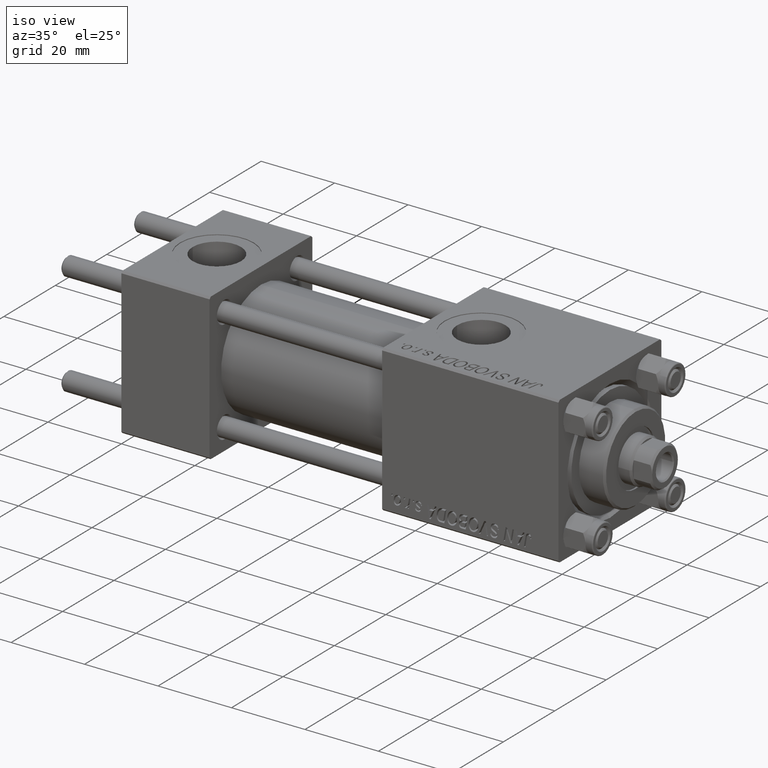
[diagram: clean part render]
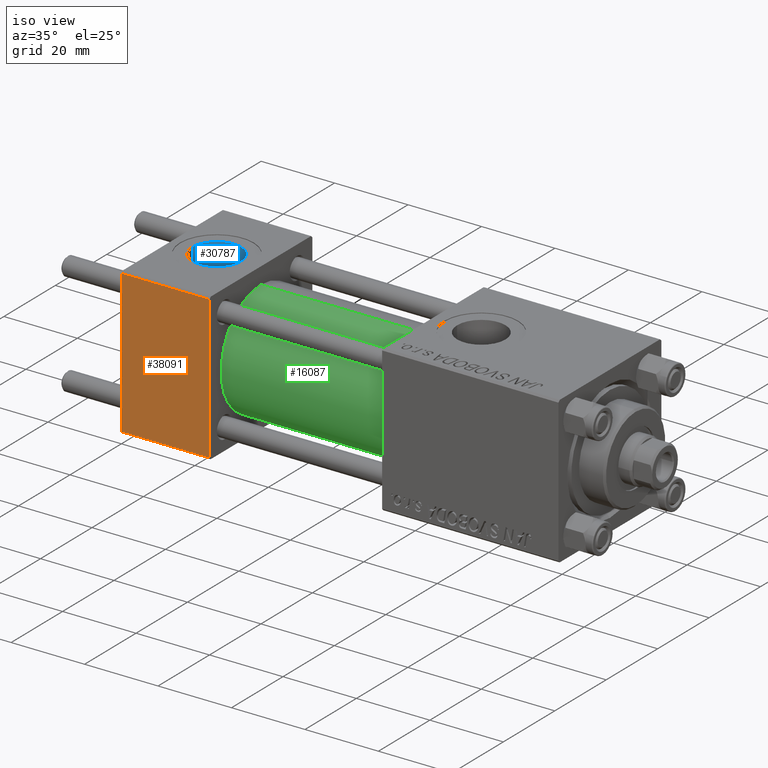
[diagram: same view with three faces highlighted in distinct colors, each labeled with its STEP entity id]
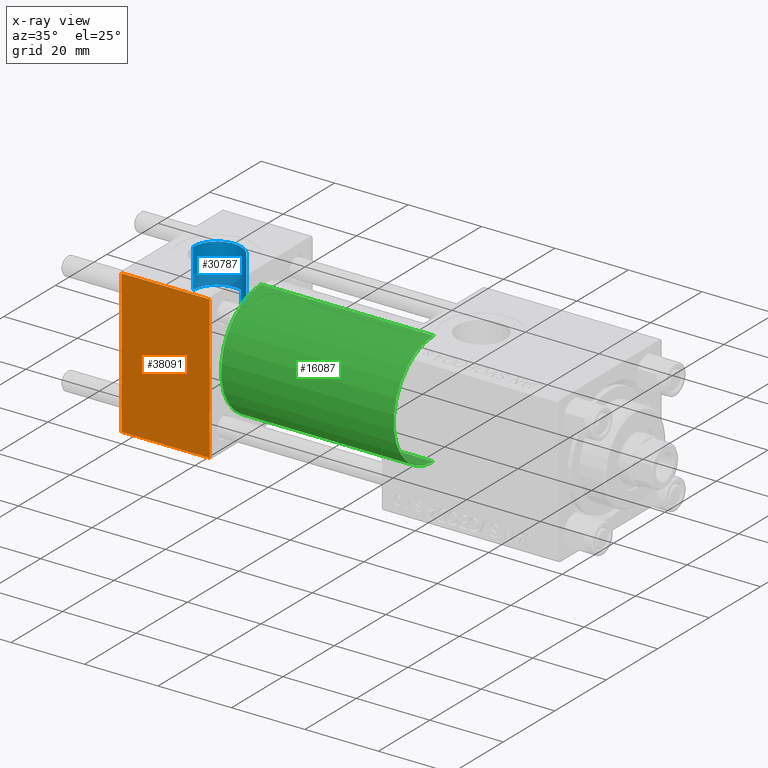
[diagram: x-ray of the same camera — body ghosted, the three highlighted faces saturated]
A machine part, iso view with three faces highlighted in distinct colors.
The next image is the same camera in x-ray (body ghosted, the three faces saturated) — at least one of them is partly hidden behind the body in this view.
Their STEP definitions:

[orange] entity #38091 — the highlighted planar face has unit normal (0, 1, 0).
#151 = VECTOR ( 'NONE', #37735, 1000.000000000000000 ) ;
#615 = EDGE_CURVE ( 'NONE', #35949, #5370, #32138, .T. ) ;
#1473 = DIRECTION ( 'NONE',  ( 0.000000000000000000, 8.673617379884036705E-17, -1.000000000000000000 ) ) ;
#1981 = CARTESIAN_POINT ( 'NONE',  ( 0.000000000000000000, -20.00000000000000000, -19.49999999999999645 ) ) ;
#3316 = LINE ( 'NONE', #29520, #31122 ) ;
#3803 = EDGE_CURVE ( 'NONE', #38895, #22591, #10530, .T. ) ;
#4255 = CARTESIAN_POINT ( 'NONE',  ( 24.00000000000000000, -20.00000000000000355, 19.99999999999998934 ) ) ;
#5370 = VERTEX_POINT ( 'NONE', #8172 ) ;
#5691 = DIRECTION ( 'NONE',  ( -1.000000000000000000, 0.000000000000000000, 0.000000000000000000 ) ) ;
#8172 = CARTESIAN_POINT ( 'NONE',  ( 0.000000000000000000, -20.00000000000000355, 19.49999999999998224 ) ) ;
#9758 = LINE ( 'NONE', #20596, #34885 ) ;
#10530 = LINE ( 'NONE', #49062, #151 ) ;
#13996 = CARTESIAN_POINT ( 'NONE',  ( 24.00000000000000000, -20.00000000000000355, 19.49999999999998224 ) ) ;
#17776 = VECTOR ( 'NONE', #5691, 1000.000000000000000 ) ;
#19619 = DIRECTION ( 'NONE',  ( 0.000000000000000000, -8.673617379884036705E-17, 1.000000000000000000 ) ) ;
#20596 = CARTESIAN_POINT ( 'NONE',  ( 0.000000000000000000, -20.00000000000000355, 19.99999999999998934 ) ) ;
#21223 = CARTESIAN_POINT ( 'NONE',  ( 24.00000000000000000, -20.00000000000000000, -19.49999999999999645 ) ) ;
#22591 = VERTEX_POINT ( 'NONE', #21223 ) ;
#22706 = DIRECTION ( 'NONE',  ( 0.000000000000000000, 8.673617379884036705E-17, -1.000000000000000000 ) ) ;
#22919 = DIRECTION ( 'NONE',  ( -0.000000000000000000, 1.000000000000000000, 8.673617379884036705E-17 ) ) ;
#24463 = ORIENTED_EDGE ( 'NONE', *, *, #24822, .F. ) ;
#24822 = EDGE_CURVE ( 'NONE', #35949, #22591, #3316, .T. ) ;
#27268 = CARTESIAN_POINT ( 'NONE',  ( 24.00000000000000000, -20.00000000000000355, 19.49999999999998224 ) ) ;
#27440 = FACE_OUTER_BOUND ( 'NONE', #47151, .T. ) ;
#29520 = CARTESIAN_POINT ( 'NONE',  ( 24.00000000000000000, -20.00000000000000355, 19.99999999999998934 ) ) ;
#31122 = VECTOR ( 'NONE', #22706, 1000.000000000000000 ) ;
#32138 = LINE ( 'NONE', #13996, #17776 ) ;
#34885 = VECTOR ( 'NONE', #1473, 1000.000000000000000 ) ;
#35949 = VERTEX_POINT ( 'NONE', #27268 ) ;
#37735 = DIRECTION ( 'NONE',  ( 1.000000000000000000, 0.000000000000000000, 0.000000000000000000 ) ) ;
#38091 = ADVANCED_FACE ( 'NONE', ( #27440 ), #38750, .F. ) ;
#38502 = ORIENTED_EDGE ( 'NONE', *, *, #48210, .T. ) ;
#38750 = PLANE ( 'NONE',  #40950 ) ;
#38895 = VERTEX_POINT ( 'NONE', #1981 ) ;
#40950 = AXIS2_PLACEMENT_3D ( 'NONE', #4255, #22919, #19619 ) ;
#42586 = ORIENTED_EDGE ( 'NONE', *, *, #615, .T. ) ;
#46602 = ORIENTED_EDGE ( 'NONE', *, *, #3803, .T. ) ;
#47151 = EDGE_LOOP ( 'NONE', ( #38502, #46602, #24463, #42586 ) ) ;
#48210 = EDGE_CURVE ( 'NONE', #5370, #38895, #9758, .T. ) ;
#49062 = CARTESIAN_POINT ( 'NONE',  ( 24.00000000000000000, -20.00000000000000000, -19.49999999999999645 ) ) ;

[blue] entity #30787 — the highlighted cylindrical surface (edge-blend (fillet) strip) has radius 6.58 mm, axis along (0, 0, 1).
#734 = EDGE_CURVE ( 'NONE', #13972, #31578, #22303, .T. ) ;
#2460 = VECTOR ( 'NONE', #11462, 1000.000000000000000 ) ;
#3115 = CYLINDRICAL_SURFACE ( 'NONE', #12719, 6.579999999999999183 ) ;
#3665 = CARTESIAN_POINT ( 'NONE',  ( 18.57999999999999829, 1.540743955509788682E-30, 9.199999999999995737 ) ) ;
#6965 = DIRECTION ( 'NONE',  ( 0.000000000000000000, 0.000000000000000000, 1.000000000000000000 ) ) ;
#7736 = CARTESIAN_POINT ( 'NONE',  ( 5.420000000000000817, 8.058175938389596335E-16, 9.165987261146492315 ) ) ;
#11462 = DIRECTION ( 'NONE',  ( -0.000000000000000000, -0.000000000000000000, 1.000000000000000000 ) ) ;
#12719 = AXIS2_PLACEMENT_3D ( 'NONE', #26055, #19223, #14955 ) ;
#12757 = CARTESIAN_POINT ( 'NONE',  ( 18.57999999999999829, 1.540743955509788682E-30, 9.165987261146492315 ) ) ;
#13972 = VERTEX_POINT ( 'NONE', #12757 ) ;
#14248 = AXIS2_PLACEMENT_3D ( 'NONE', #38855, #38614, #27054 ) ;
#14955 = DIRECTION ( 'NONE',  ( 1.000000000000000000, 0.000000000000000000, 0.000000000000000000 ) ) ;
#16268 = AXIS2_PLACEMENT_3D ( 'NONE', #37937, #6965, #38193 ) ;
#17873 = VERTEX_POINT ( 'NONE', #7736 ) ;
#18670 = CIRCLE ( 'NONE', #16268, 6.579999999999999183 ) ;
#19223 = DIRECTION ( 'NONE',  ( -0.000000000000000000, -0.000000000000000000, 1.000000000000000000 ) ) ;
#21893 = ORIENTED_EDGE ( 'NONE', *, *, #39817, .F. ) ;
#22303 = LINE ( 'NONE', #3665, #2460 ) ;
#26055 = CARTESIAN_POINT ( 'NONE',  ( 12.00000000000000000, 1.540743955509788682E-30, 9.199999999999995737 ) ) ;
#26231 = CARTESIAN_POINT ( 'NONE',  ( 5.420000000000000817, 8.058175938389596335E-16, 9.199999999999995737 ) ) ;
#27054 = DIRECTION ( 'NONE',  ( 1.000000000000000000, 0.000000000000000000, 0.000000000000000000 ) ) ;
#27808 = EDGE_CURVE ( 'NONE', #17873, #13972, #42401, .T. ) ;
#27875 = CARTESIAN_POINT ( 'NONE',  ( 5.420000000000000817, 8.058175938389596335E-16, 19.79999999999999716 ) ) ;
#27985 = ORIENTED_EDGE ( 'NONE', *, *, #44875, .T. ) ;
#30070 = FACE_OUTER_BOUND ( 'NONE', #35806, .T. ) ;
#30787 = ADVANCED_FACE ( 'NONE', ( #30070 ), #3115, .F. ) ;
#31578 = VERTEX_POINT ( 'NONE', #41362 ) ;
#31926 = ORIENTED_EDGE ( 'NONE', *, *, #734, .T. ) ;
#35806 = EDGE_LOOP ( 'NONE', ( #21893, #49828, #31926, #27985 ) ) ;
#37544 = DIRECTION ( 'NONE',  ( -0.000000000000000000, -0.000000000000000000, 1.000000000000000000 ) ) ;
#37937 = CARTESIAN_POINT ( 'NONE',  ( 12.00000000000000000, 1.540743955509788682E-30, 19.79999999999999716 ) ) ;
#38193 = DIRECTION ( 'NONE',  ( 1.000000000000000000, 0.000000000000000000, 0.000000000000000000 ) ) ;
#38614 = DIRECTION ( 'NONE',  ( -0.000000000000000000, -0.000000000000000000, -1.000000000000000000 ) ) ;
#38855 = CARTESIAN_POINT ( 'NONE',  ( 12.00000000000000000, 1.540743955509788682E-30, 9.165987261146492315 ) ) ;
#39817 = EDGE_CURVE ( 'NONE', #17873, #46472, #49379, .T. ) ;
#40220 = VECTOR ( 'NONE', #37544, 1000.000000000000000 ) ;
#41362 = CARTESIAN_POINT ( 'NONE',  ( 18.57999999999999829, 1.540743955509788682E-30, 19.79999999999999716 ) ) ;
#42401 = CIRCLE ( 'NONE', #14248, 6.579999999999999183 ) ;
#44875 = EDGE_CURVE ( 'NONE', #31578, #46472, #18670, .T. ) ;
#46472 = VERTEX_POINT ( 'NONE', #27875 ) ;
#49379 = LINE ( 'NONE', #26231, #40220 ) ;
#49828 = ORIENTED_EDGE ( 'NONE', *, *, #27808, .T. ) ;

[green] entity #16087 — the highlighted cylindrical surface (partial cylindrical patch) has radius 15.5 mm, axis along (-1, -0, -0).
#980 = AXIS2_PLACEMENT_3D ( 'NONE', #19478, #43125, #23023 ) ;
#3110 = EDGE_CURVE ( 'NONE', #13412, #15939, #40439, .T. ) ;
#4895 = VERTEX_POINT ( 'NONE', #43083 ) ;
#5905 = ORIENTED_EDGE ( 'NONE', *, *, #44260, .F. ) ;
#6626 = CARTESIAN_POINT ( 'NONE',  ( 71.00000000000001421, 1.898202538678397557E-15, -15.50000000000000000 ) ) ;
#6850 = AXIS2_PLACEMENT_3D ( 'NONE', #17076, #21105, #43773 ) ;
#10073 = LINE ( 'NONE', #21655, #29849 ) ;
#10357 = DIRECTION ( 'NONE',  ( 0.000000000000000000, 0.000000000000000000, 1.000000000000000000 ) ) ;
#13042 = CYLINDRICAL_SURFACE ( 'NONE', #6850, 15.50000000000000000 ) ;
#13412 = VERTEX_POINT ( 'NONE', #42934 ) ;
#15939 = VERTEX_POINT ( 'NONE', #42783 ) ;
#16087 = ADVANCED_FACE ( 'NONE', ( #27937 ), #13042, .T. ) ;
#16144 = ORIENTED_EDGE ( 'NONE', *, *, #3110, .F. ) ;
#17076 = CARTESIAN_POINT ( 'NONE',  ( 71.00000000000001421, 0.000000000000000000, 0.000000000000000000 ) ) ;
#18408 = CARTESIAN_POINT ( 'NONE',  ( 24.00000000000000000, 0.000000000000000000, 0.000000000000000000 ) ) ;
#19478 = CARTESIAN_POINT ( 'NONE',  ( 71.00000000000001421, 0.000000000000000000, 0.000000000000000000 ) ) ;
#21105 = DIRECTION ( 'NONE',  ( -1.000000000000000000, -0.000000000000000000, -0.000000000000000000 ) ) ;
#21655 = CARTESIAN_POINT ( 'NONE',  ( 71.00000000000001421, 0.000000000000000000, 15.50000000000000000 ) ) ;
#21994 = DIRECTION ( 'NONE',  ( -1.000000000000000000, -0.000000000000000000, -0.000000000000000000 ) ) ;
#23023 = DIRECTION ( 'NONE',  ( 0.000000000000000000, 0.000000000000000000, -1.000000000000000000 ) ) ;
#23927 = EDGE_CURVE ( 'NONE', #4895, #15939, #34353, .T. ) ;
#24314 = CIRCLE ( 'NONE', #980, 15.50000000000000000 ) ;
#27541 = CARTESIAN_POINT ( 'NONE',  ( 71.00000000000001421, 0.000000000000000000, 15.50000000000000000 ) ) ;
#27937 = FACE_OUTER_BOUND ( 'NONE', #42868, .T. ) ;
#28015 = ORIENTED_EDGE ( 'NONE', *, *, #42326, .T. ) ;
#29849 = VECTOR ( 'NONE', #37012, 1000.000000000000000 ) ;
#33715 = VERTEX_POINT ( 'NONE', #27541 ) ;
#34016 = DIRECTION ( 'NONE',  ( 1.000000000000000000, 0.000000000000000000, 0.000000000000000000 ) ) ;
#34353 = CIRCLE ( 'NONE', #45598, 15.50000000000000000 ) ;
#35538 = VECTOR ( 'NONE', #21994, 1000.000000000000000 ) ;
#37012 = DIRECTION ( 'NONE',  ( -1.000000000000000000, -0.000000000000000000, -0.000000000000000000 ) ) ;
#40439 = LINE ( 'NONE', #6626, #35538 ) ;
#42326 = EDGE_CURVE ( 'NONE', #33715, #4895, #10073, .T. ) ;
#42783 = CARTESIAN_POINT ( 'NONE',  ( 24.00000000000000000, 1.898202538678397557E-15, -15.50000000000000000 ) ) ;
#42868 = EDGE_LOOP ( 'NONE', ( #16144, #5905, #28015, #49629 ) ) ;
#42934 = CARTESIAN_POINT ( 'NONE',  ( 71.00000000000001421, 1.898202538678397557E-15, -15.50000000000000000 ) ) ;
#43083 = CARTESIAN_POINT ( 'NONE',  ( 24.00000000000000000, 0.000000000000000000, 15.50000000000000000 ) ) ;
#43125 = DIRECTION ( 'NONE',  ( 1.000000000000000000, 0.000000000000000000, 0.000000000000000000 ) ) ;
#43773 = DIRECTION ( 'NONE',  ( 0.000000000000000000, 0.000000000000000000, 1.000000000000000000 ) ) ;
#44260 = EDGE_CURVE ( 'NONE', #33715, #13412, #24314, .T. ) ;
#45598 = AXIS2_PLACEMENT_3D ( 'NONE', #18408, #34016, #10357 ) ;
#49629 = ORIENTED_EDGE ( 'NONE', *, *, #23927, .T. ) ;